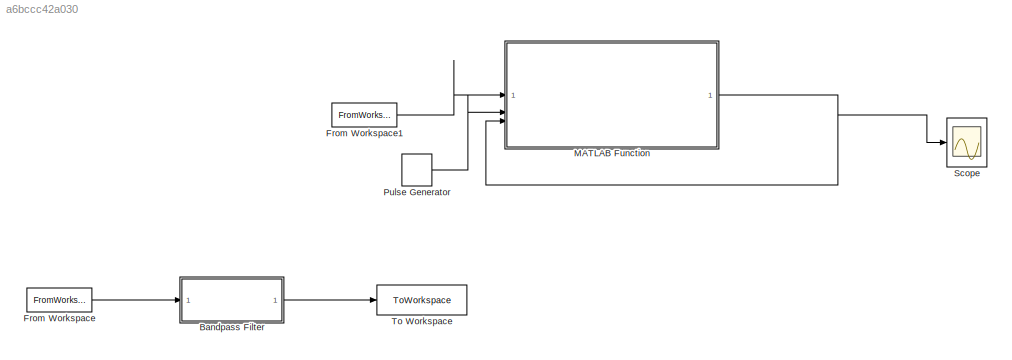
MODEL slx_a6bccc42a030
KIND model
CONFIG AbsTol = auto
CONFIG EnableMultiTasking = off
CONFIG FixedStep = auto
CONFIG MaxStep = auto
CONFIG MinStep = auto
CONFIG RelTol = 1e-3
CONFIG SampleTimeConstraint = Unconstrained
CONFIG SolverName = VariableStepAuto
CONFIG StartTime = 0.0
CONFIG StopTime = 10.0
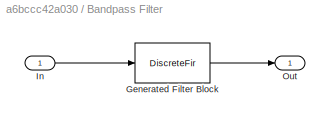
BLOCK [SubSystem] Bandpass Filter
  CopyFcn = fdesignblkfcn(gcbh, {'CopyFcn'});
  DialogController = fdesignblkfcn
  InitFcn = fdesignblkfcn(gcbh, {'InitFcn'});
  UserDataPersistent = on
BLOCK [DiscreteFir] Bandpass Filter/Generated Filter Block
  Coefficients = [-0.0006939392823984735 -0.000453503047195787383 -0.000554847844681304525 -0.000631227820673596293 -0.000669189870506134562 -0.00065813343723531109 -0.00059001627987731529 -0.000461764129342106123 -0.00027684141888215623 -4.53991731016917298e-05 0.000219889958781164293 0.00049670244151323983 0.000764304252813848462 0.000998819969616423359 0.00117910105157392514 0.00128857636862268038 0.00131691778...<+23623ch>
  InputPortMap = u0
  InputProcessing = Columns as channels (frame based)
  OutputPortMap = o0
  Tag = BlockMethodSubSystem
BLOCK [Inport] Bandpass Filter/In
BLOCK [Outport] Bandpass Filter/Out
  VectorParamsAs1DForOutWhenUnconnected = off
BLOCK [FromWorkspace] From Workspace
  VariableName = matFiles
BLOCK [FromWorkspace] From Workspace1
  VariableName = eeg_filtered
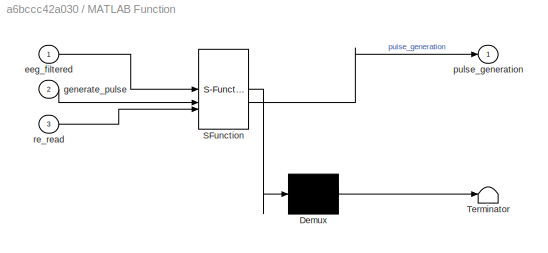
BLOCK [SubSystem] MATLAB Function
  ErrorFcn = Stateflow.Translate.translate
  PermitHierarchicalResolution = ExplicitOnly
  SFBlockType = MATLAB Function
  TreatAsAtomicUnit = on
BLOCK [Demux] MATLAB Function/ Demux 
  Outputs = 1
BLOCK [S-Function] MATLAB Function/ SFunction 
  EnableBusSupport = on
  FunctionName = sf_sfun
  PortCounts = [3 2]
  SFcnIsStateOwnerBlock = off
  SFunctionDeploymentMode = off
  Tag = Stateflow S-Function 2
BLOCK [Terminator] MATLAB Function/ Terminator 
BLOCK [Inport] MATLAB Function/eeg_filtered
BLOCK [Inport] MATLAB Function/generate_pulse
  Port = 2
BLOCK [Outport] MATLAB Function/pulse_generation
BLOCK [Inport] MATLAB Function/re_read
  Port = 3
BLOCK [DiscretePulseGenerator] Pulse Generator
  Period = 10
  PulseType = Time based
  PulseWidth = 5
BLOCK [Scope] Scope
  Floating = off
  NumInputPorts = 2
  ScopeSpecificationString = Simulink.scopes.TimeScopeBlockCfg('CurrentConfiguration', extmgr.ConfigurationSet(extmgr.Configuration('Core','General UI',true),extmgr.Configuration('Core','Source UI',true),extmgr.Configuration('Sources','WiredSimulink',true),extmgr.Configuration('Visuals','Time Domain',true),extmgr.Configuration('Tools','Plot Navigation',true),extmgr.Configuration('Tools','Measurements',true)),'Version','2023b'...<+1ch>
BLOCK [ToWorkspace] To Workspace
  FixptAsFi = on
  MaxDataPoints = inf
  SampleTime = -1
  SaveFormat = Structure
  VariableName = eeg_filtered
LINE Bandpass Filter:1 -> To Workspace:1
LINE From Workspace1:1 -> MATLAB Function:1
LINE From Workspace:1 -> Bandpass Filter:1
NET MATLAB Function:1 -> MATLAB Function:3, Scope:1
LINE Pulse Generator:1 -> MATLAB Function:2
note: NET lines group one-source signal fan-out (src -> all destinations, sorted); 1:1 wires keep LINE
CHART MATLAB Function states=1 transitions=1
  STATE_LABEL 'eML_blk_kernel()'
  STATE_LABEL "SCRIPT:\nfunction pulse_generation = fcn(eeg_filtered, generate_pulse, re_read)\n\n% Hjorth Activity, Mobility, Complexity\nf1 = jfeeg('ha', X);\nf2 = jfeeg('hm', X);\nf3 = jfeeg('hc', X);\n\n% Feature vector for Hjorth features\nhjorth_feat = [f1, f2, f3];\n\n% Band Power Alpha, Tsallis Entropy\nopts.fs = 500;\nf4 = jfeeg('bpa', X, opts);\nopts.alpha = 2;\nf5 = jfeeg('te', X, opts);\n\n% Feature vector for additi...<+644ch>"
CHART  states=0 transitions=0
